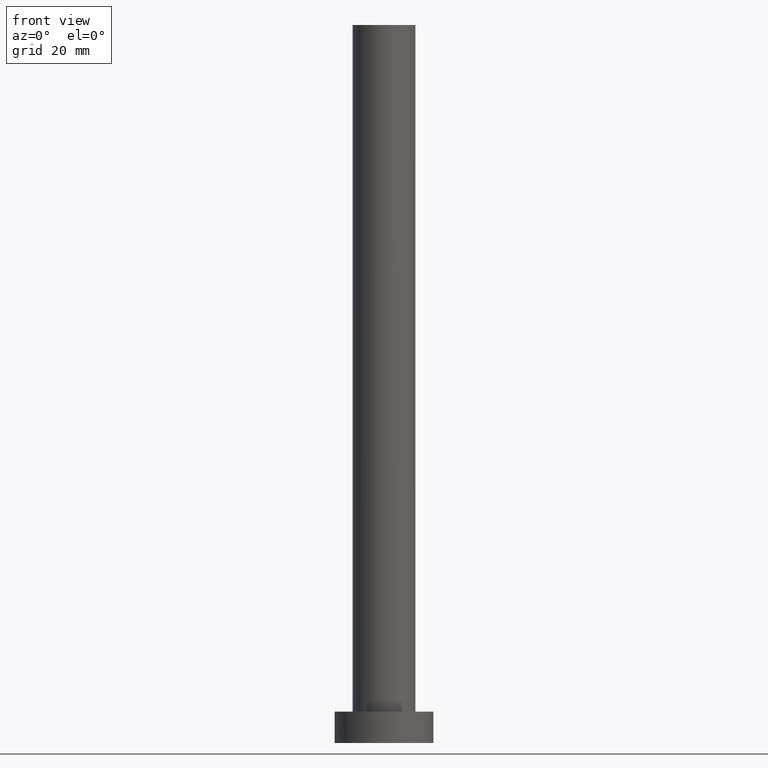
[diagram: clean part render]
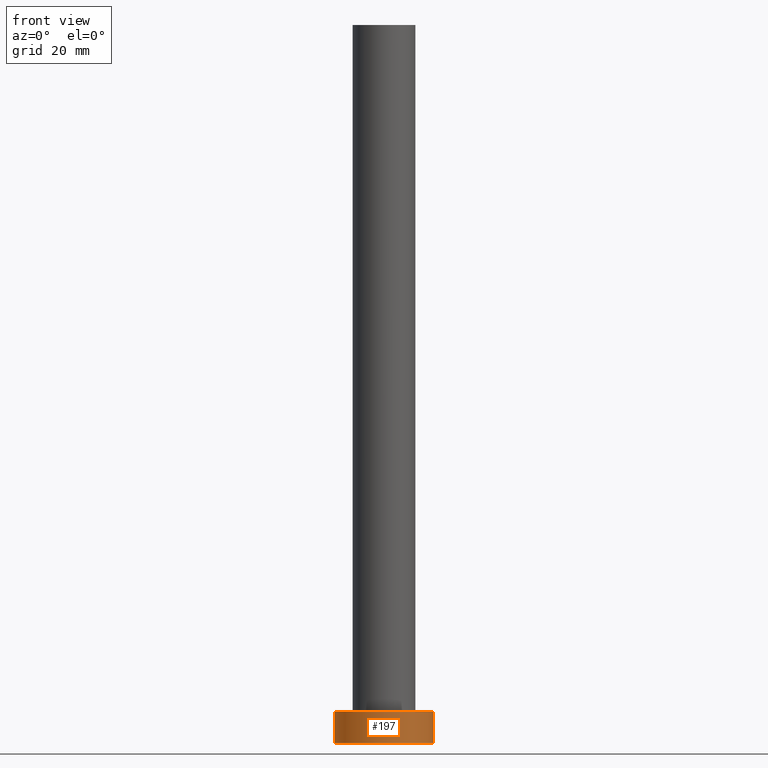
[diagram: same view with one face highlighted and labeled with its STEP entity id]
A machine part, front view. The second image highlights one B-rep face of the part: STEP entity #197.
In plain terms, the highlighted cylindrical surface (partial cylindrical patch) has radius 11 mm, axis along (-0, -0, -1).
Its self-contained STEP definition (entity closure, byte-faithful):
#8 = CARTESIAN_POINT ( 'NONE',  ( -11.00000000000000000, 0.000000000000000000, 7.000000000000000000 ) ) ;
#14 = CARTESIAN_POINT ( 'NONE',  ( 0.000000000000000000, 0.000000000000000000, 0.000000000000000000 ) ) ;
#16 = CARTESIAN_POINT ( 'NONE',  ( -11.00000000000000000, 0.000000000000000000, 0.000000000000000000 ) ) ;
#29 = DIRECTION ( 'NONE',  ( 1.000000000000000000, 0.000000000000000000, 0.000000000000000000 ) ) ;
#34 = CARTESIAN_POINT ( 'NONE',  ( 11.00000000000000000, 1.347111479062088405E-15, 0.000000000000000000 ) ) ;
#46 = LINE ( 'NONE', #8, #147 ) ;
#55 = DIRECTION ( 'NONE',  ( 0.000000000000000000, 0.000000000000000000, 1.000000000000000000 ) ) ;
#57 = CARTESIAN_POINT ( 'NONE',  ( 0.000000000000000000, 0.000000000000000000, 7.000000000000000000 ) ) ;
#58 = LINE ( 'NONE', #219, #177 ) ;
#60 = DIRECTION ( 'NONE',  ( 1.000000000000000000, 0.000000000000000000, 0.000000000000000000 ) ) ;
#64 = EDGE_CURVE ( 'NONE', #226, #164, #161, .T. ) ;
#69 = ORIENTED_EDGE ( 'NONE', *, *, #98, .T. ) ;
#71 = AXIS2_PLACEMENT_3D ( 'NONE', #75, #190, #29 ) ;
#75 = CARTESIAN_POINT ( 'NONE',  ( 0.000000000000000000, 0.000000000000000000, 7.000000000000000000 ) ) ;
#81 = DIRECTION ( 'NONE',  ( -0.000000000000000000, -0.000000000000000000, -1.000000000000000000 ) ) ;
#90 = EDGE_LOOP ( 'NONE', ( #227, #170, #69, #122 ) ) ;
#92 = DIRECTION ( 'NONE',  ( -0.000000000000000000, -0.000000000000000000, -1.000000000000000000 ) ) ;
#98 = EDGE_CURVE ( 'NONE', #226, #123, #46, .T. ) ;
#117 = CARTESIAN_POINT ( 'NONE',  ( -11.00000000000000000, 0.000000000000000000, 7.000000000000000000 ) ) ;
#122 = ORIENTED_EDGE ( 'NONE', *, *, #232, .T. ) ;
#123 = VERTEX_POINT ( 'NONE', #16 ) ;
#142 = CIRCLE ( 'NONE', #194, 11.00000000000000000 ) ;
#143 = VERTEX_POINT ( 'NONE', #34 ) ;
#146 = AXIS2_PLACEMENT_3D ( 'NONE', #57, #81, #231 ) ;
#147 = VECTOR ( 'NONE', #92, 1000.000000000000000 ) ;
#157 = DIRECTION ( 'NONE',  ( -0.000000000000000000, -0.000000000000000000, -1.000000000000000000 ) ) ;
#161 = CIRCLE ( 'NONE', #71, 11.00000000000000000 ) ;
#164 = VERTEX_POINT ( 'NONE', #178 ) ;
#170 = ORIENTED_EDGE ( 'NONE', *, *, #64, .F. ) ;
#177 = VECTOR ( 'NONE', #157, 1000.000000000000000 ) ;
#178 = CARTESIAN_POINT ( 'NONE',  ( 11.00000000000000000, 1.347111479062088405E-15, 7.000000000000000000 ) ) ;
#190 = DIRECTION ( 'NONE',  ( 0.000000000000000000, 0.000000000000000000, 1.000000000000000000 ) ) ;
#194 = AXIS2_PLACEMENT_3D ( 'NONE', #14, #55, #60 ) ;
#197 = ADVANCED_FACE ( 'NONE', ( #221 ), #200, .T. ) ;
#200 = CYLINDRICAL_SURFACE ( 'NONE', #146, 11.00000000000000000 ) ;
#201 = EDGE_CURVE ( 'NONE', #164, #143, #58, .T. ) ;
#219 = CARTESIAN_POINT ( 'NONE',  ( 11.00000000000000000, 1.347111479062088405E-15, 7.000000000000000000 ) ) ;
#221 = FACE_OUTER_BOUND ( 'NONE', #90, .T. ) ;
#226 = VERTEX_POINT ( 'NONE', #117 ) ;
#227 = ORIENTED_EDGE ( 'NONE', *, *, #201, .F. ) ;
#231 = DIRECTION ( 'NONE',  ( -1.000000000000000000, 0.000000000000000000, 0.000000000000000000 ) ) ;
#232 = EDGE_CURVE ( 'NONE', #123, #143, #142, .T. ) ;